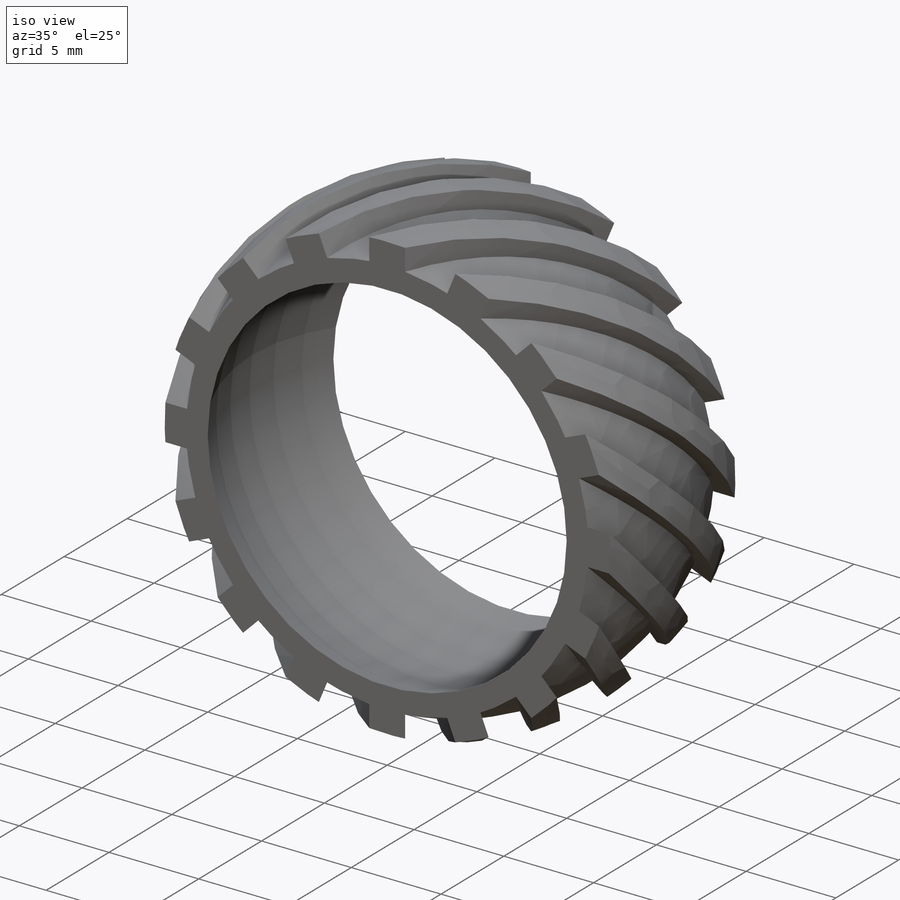
[diagram: iso view]
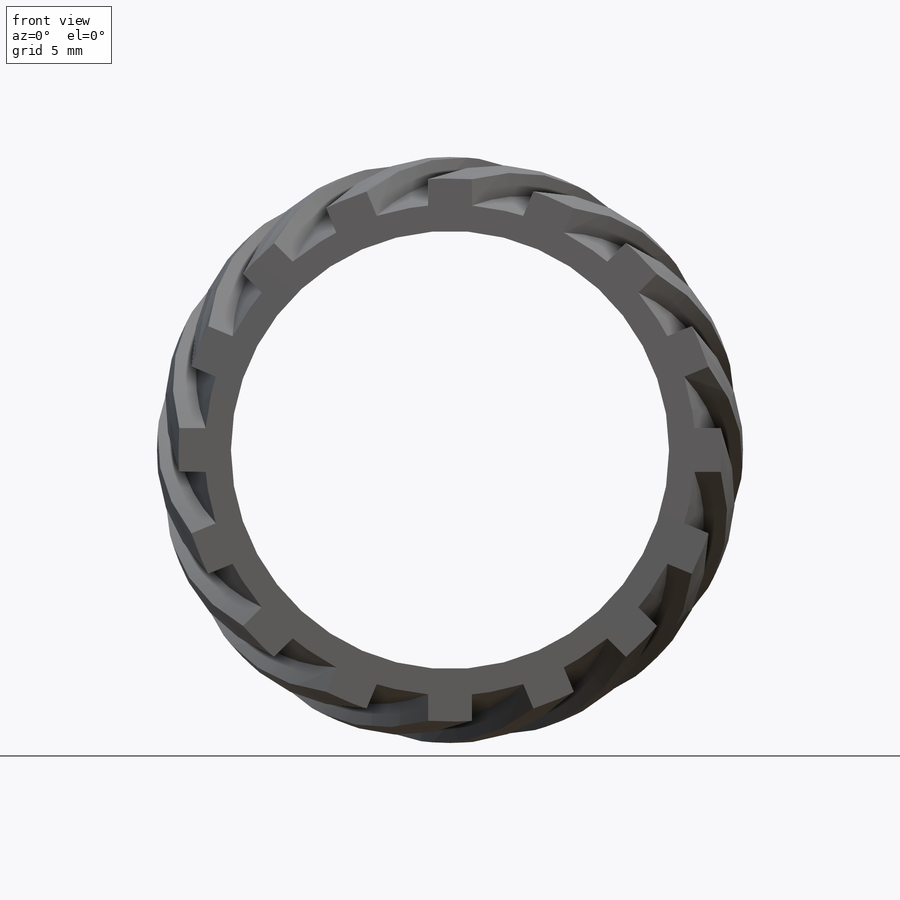
[diagram: front view]
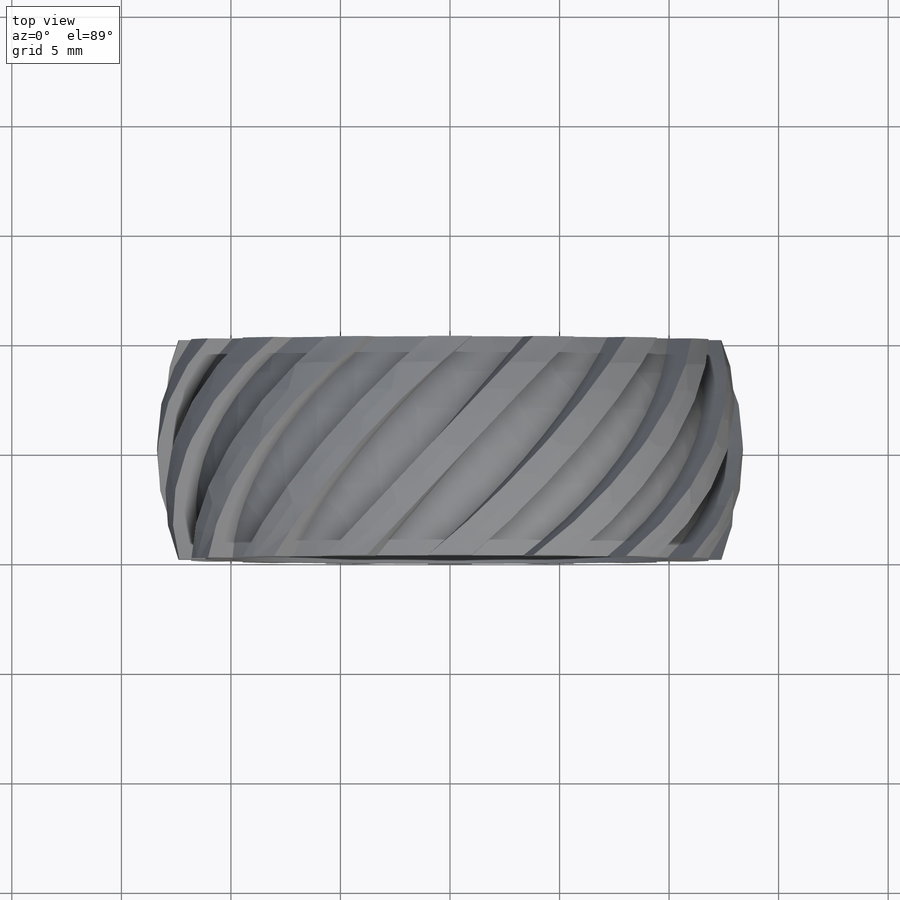
[diagram: top view]
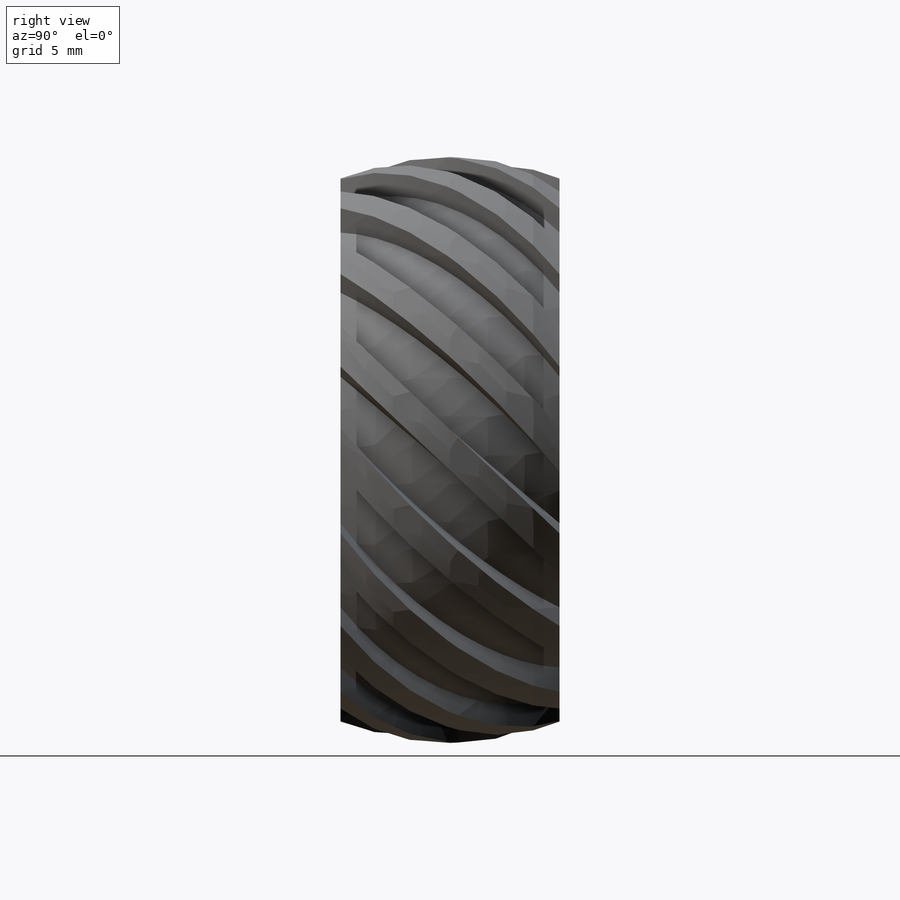
[diagram: right view]
SOLIDWORKS PART (.sldprt)
format: sldprt  version: not decoded by parser v0  size: 415,744 bytes
history: native  units: mm
features: sketch x5, plane x2, material x1, revolve x1, pattern_circular x1 (+12 scaffold rows collapsed)
feature tree (22):
  scaffold x12  (default folders/planes/origin — collapsed)
  material  "Material <not specified>"
  sketch  "Sketch1"  dims[c1.D5=~10.776879mm c1.D1=20.0mm c1.D2=5.0mm c1.D3=1.2mm c1.D4=1.2mm c2.D5=1.2mm c2.D6=1.2mm c2.D1=5.0mm c2.D2=10.0mm c3.D5=1.2mm]
  revolve  "Revolve1"  Angle=360deg
  sketch  "Sketch2"  dims[D1=1.2mm D2=1.0mm D3=1.0mm]
  sketch  "Sketch3"  dims[c1.D3=~12.54237mm c1.D1=45.0deg c2.D1=1.0mm c2.D2=1.0mm c2.D3=1.2mm]
  plane  "Plane2"
  sketch  "Sketch4"
  plane  "Plane4"
  sketch  "Sketch5"
  pattern_circular  "CirPattern1"  Count=16 Angle=360deg
decode coverage: 5 of 7 modeling features carry decoded parameters
note: ~ marks probable driven/reference dimensions
note: suppression state not decoded; provenance and decode notes live in map.json
